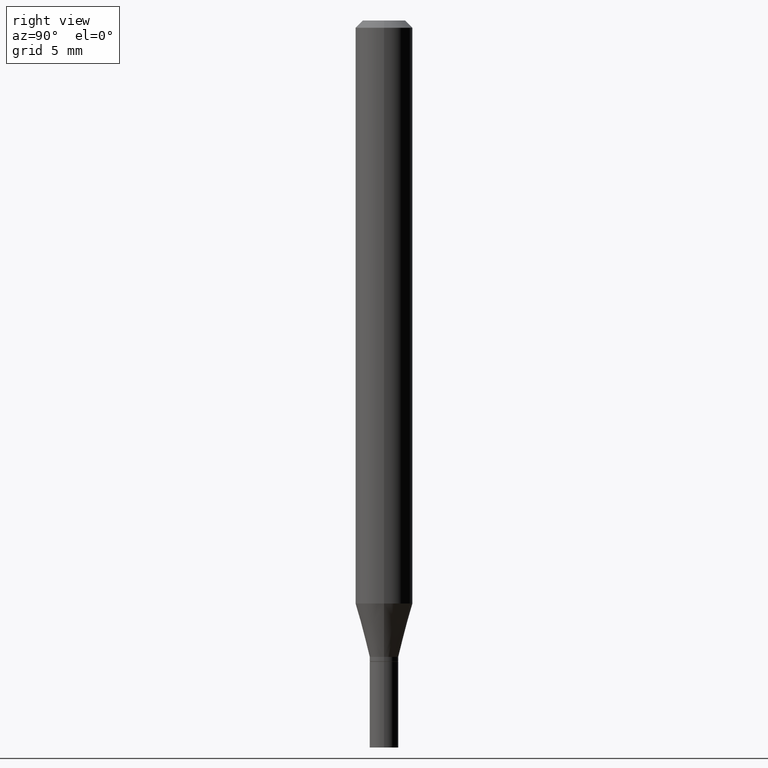
[diagram: clean part render]
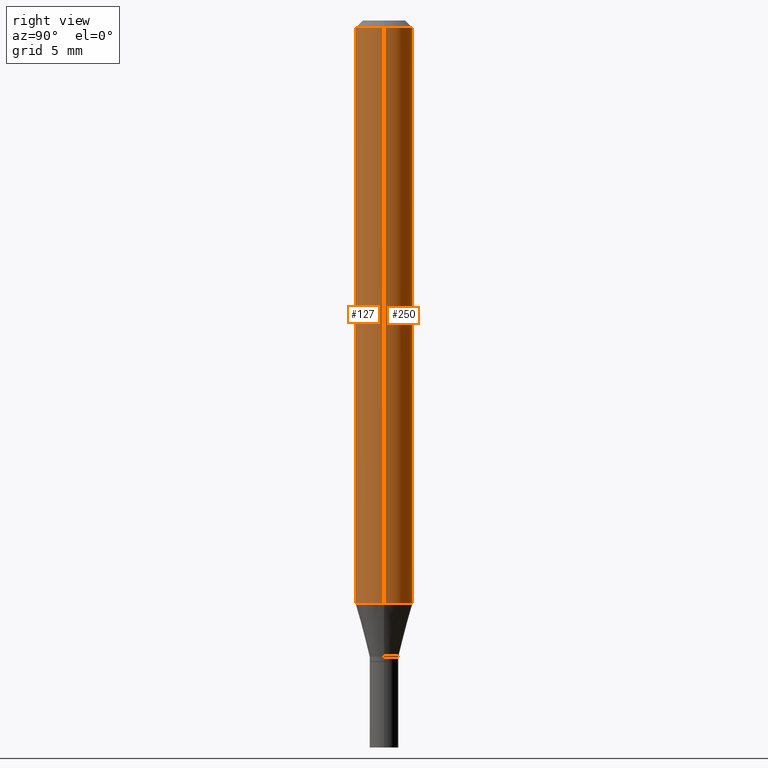
[diagram: same view with one multi-face feature highlighted, each face labeled with its STEP entity id]
A machine part, right view. The highlighted faces form ONE feature: a constant-radius fillet chain: 2 tangent blend faces with common blend radius 1.4999 mm. The faces share edges in the B-rep.
Their STEP definitions:
[1] entity #127 (Cylinder):
#2 = DIRECTION ( 'NONE',  ( -2.445468806185136877E-29, 3.491481338843145188E-15, 1.000000000000000000 ) ) ;
#7 = EDGE_CURVE ( 'NONE', #201, #387, #37, .T. ) ;
#17 = CARTESIAN_POINT ( 'NONE',  ( 3.668203209277705088E-31, -5.237222008264718399E-17, -0.01499999999999999944 ) ) ;
#22 = CARTESIAN_POINT ( 'NONE',  ( -0.05904999999999999832, -3.780343132802594460E-15, -1.202904501176718099 ) ) ;
#23 = DIRECTION ( 'NONE',  ( 1.000000000000000000, -6.982962677686273021E-15, 0.000000000000000000 ) ) ;
#29 = FACE_OUTER_BOUND ( 'NONE', #452, .T. ) ;
#37 = LINE ( 'NONE', #330, #188 ) ;
#39 = AXIS2_PLACEMENT_3D ( 'NONE', #17, #203, #308 ) ;
#82 = ORIENTED_EDGE ( 'NONE', *, *, #7, .T. ) ;
#96 = CARTESIAN_POINT ( 'NONE',  ( 0.05904999999999999832, -4.612262564386308085E-15, -1.202904501176718099 ) ) ;
#99 = CARTESIAN_POINT ( 'NONE',  ( 0.000000000000000000, 0.000000000000000000, 0.000000000000000000 ) ) ;
#114 = EDGE_CURVE ( 'NONE', #186, #201, #245, .T. ) ;
#126 = AXIS2_PLACEMENT_3D ( 'NONE', #239, #286, #23 ) ;
#127 = ADVANCED_FACE ( 'NONE', ( #29 ), #170, .T. ) ;
#131 = DIRECTION ( 'NONE',  ( -2.445468806185136877E-29, 3.491481338843145188E-15, 1.000000000000000000 ) ) ;
#149 = AXIS2_PLACEMENT_3D ( 'NONE', #99, #177, #249 ) ;
#158 = CIRCLE ( 'NONE', #39, 0.05905000000000001914 ) ;
#162 = CARTESIAN_POINT ( 'NONE',  ( -0.05905000000000002608, -1.706569933709451418E-15, -0.01499999999999999944 ) ) ;
#170 = CYLINDRICAL_SURFACE ( 'NONE', #149, 0.05905000000000000526 ) ;
#174 = EDGE_CURVE ( 'NONE', #186, #229, #455, .T. ) ;
#177 = DIRECTION ( 'NONE',  ( -2.445468806185136597E-29, 3.491481338843145583E-15, 1.000000000000000000 ) ) ;
#186 = VERTEX_POINT ( 'NONE', #22 ) ;
#188 = VECTOR ( 'NONE', #2, 39.37007874015748143 ) ;
#199 = ORIENTED_EDGE ( 'NONE', *, *, #226, .F. ) ;
#201 = VERTEX_POINT ( 'NONE', #96 ) ;
#203 = DIRECTION ( 'NONE',  ( -2.445468806185136597E-29, 3.491481338843145583E-15, 1.000000000000000000 ) ) ;
#226 = EDGE_CURVE ( 'NONE', #229, #387, #158, .T. ) ;
#229 = VERTEX_POINT ( 'NONE', #162 ) ;
#239 = CARTESIAN_POINT ( 'NONE',  ( 2.941665434447356051E-29, -4.199918618268933165E-15, -1.202904501176718099 ) ) ;
#245 = CIRCLE ( 'NONE', #126, 0.05904999999999999832 ) ;
#249 = DIRECTION ( 'NONE',  ( 1.000000000000000000, -6.982962677686267499E-15, 4.876176775795936353E-29 ) ) ;
#286 = DIRECTION ( 'NONE',  ( -2.445468806185136597E-29, 3.491481338843145583E-15, 1.000000000000000000 ) ) ;
#308 = DIRECTION ( 'NONE',  ( 1.000000000000000000, -6.982962677686266711E-15, 0.000000000000000000 ) ) ;
#321 = CARTESIAN_POINT ( 'NONE',  ( 0.05905000000000001914, -4.647161662000214077E-16, -0.01499999999999999944 ) ) ;
#330 = CARTESIAN_POINT ( 'NONE',  ( 0.05905000000000000526, -4.123439461173741313E-16, 2.879382386107500571E-30 ) ) ;
#336 = VECTOR ( 'NONE', #131, 39.37007874015748143 ) ;
#387 = VERTEX_POINT ( 'NONE', #321 ) ;
#396 = CARTESIAN_POINT ( 'NONE',  ( -0.05905000000000000526, 4.195754854663391971E-16, -2.904631170795522242E-30 ) ) ;
#410 = ORIENTED_EDGE ( 'NONE', *, *, #174, .F. ) ;
#448 = ORIENTED_EDGE ( 'NONE', *, *, #114, .T. ) ;
#452 = EDGE_LOOP ( 'NONE', ( #410, #448, #82, #199 ) ) ;
#455 = LINE ( 'NONE', #396, #336 ) ;
[2] entity #250 (Cylinder):
#2 = DIRECTION ( 'NONE',  ( -2.445468806185136877E-29, 3.491481338843145188E-15, 1.000000000000000000 ) ) ;
#7 = EDGE_CURVE ( 'NONE', #201, #387, #37, .T. ) ;
#14 = AXIS2_PLACEMENT_3D ( 'NONE', #233, #312, #123 ) ;
#22 = CARTESIAN_POINT ( 'NONE',  ( -0.05904999999999999832, -3.780343132802594460E-15, -1.202904501176718099 ) ) ;
#26 = CARTESIAN_POINT ( 'NONE',  ( 2.941665434447356051E-29, -4.199918618268933165E-15, -1.202904501176718099 ) ) ;
#37 = LINE ( 'NONE', #330, #188 ) ;
#67 = EDGE_CURVE ( 'NONE', #387, #229, #391, .T. ) ;
#69 = CIRCLE ( 'NONE', #296, 0.05904999999999999832 ) ;
#84 = FACE_OUTER_BOUND ( 'NONE', #385, .T. ) ;
#86 = DIRECTION ( 'NONE',  ( 1.000000000000000000, -6.982962677686273021E-15, 0.000000000000000000 ) ) ;
#94 = ORIENTED_EDGE ( 'NONE', *, *, #67, .F. ) ;
#96 = CARTESIAN_POINT ( 'NONE',  ( 0.05904999999999999832, -4.612262564386308085E-15, -1.202904501176718099 ) ) ;
#123 = DIRECTION ( 'NONE',  ( 1.000000000000000000, -6.982962677686267499E-15, 4.876176775795936353E-29 ) ) ;
#129 = ORIENTED_EDGE ( 'NONE', *, *, #174, .T. ) ;
#131 = DIRECTION ( 'NONE',  ( -2.445468806185136877E-29, 3.491481338843145188E-15, 1.000000000000000000 ) ) ;
#157 = DIRECTION ( 'NONE',  ( -2.445468806185136597E-29, 3.491481338843145583E-15, 1.000000000000000000 ) ) ;
#162 = CARTESIAN_POINT ( 'NONE',  ( -0.05905000000000002608, -1.706569933709451418E-15, -0.01499999999999999944 ) ) ;
#174 = EDGE_CURVE ( 'NONE', #186, #229, #455, .T. ) ;
#179 = AXIS2_PLACEMENT_3D ( 'NONE', #416, #302, #380 ) ;
#186 = VERTEX_POINT ( 'NONE', #22 ) ;
#188 = VECTOR ( 'NONE', #2, 39.37007874015748143 ) ;
#201 = VERTEX_POINT ( 'NONE', #96 ) ;
#229 = VERTEX_POINT ( 'NONE', #162 ) ;
#233 = CARTESIAN_POINT ( 'NONE',  ( 0.000000000000000000, 0.000000000000000000, 0.000000000000000000 ) ) ;
#250 = ADVANCED_FACE ( 'NONE', ( #84 ), #454, .T. ) ;
#296 = AXIS2_PLACEMENT_3D ( 'NONE', #26, #157, #86 ) ;
#302 = DIRECTION ( 'NONE',  ( -2.445468806185136597E-29, 3.491481338843145583E-15, 1.000000000000000000 ) ) ;
#312 = DIRECTION ( 'NONE',  ( -2.445468806185136597E-29, 3.491481338843145583E-15, 1.000000000000000000 ) ) ;
#321 = CARTESIAN_POINT ( 'NONE',  ( 0.05905000000000001914, -4.647161662000214077E-16, -0.01499999999999999944 ) ) ;
#330 = CARTESIAN_POINT ( 'NONE',  ( 0.05905000000000000526, -4.123439461173741313E-16, 2.879382386107500571E-30 ) ) ;
#336 = VECTOR ( 'NONE', #131, 39.37007874015748143 ) ;
#338 = EDGE_CURVE ( 'NONE', #201, #186, #69, .T. ) ;
#349 = ORIENTED_EDGE ( 'NONE', *, *, #338, .T. ) ;
#380 = DIRECTION ( 'NONE',  ( 1.000000000000000000, -6.982962677686266711E-15, 0.000000000000000000 ) ) ;
#385 = EDGE_LOOP ( 'NONE', ( #349, #129, #94, #414 ) ) ;
#387 = VERTEX_POINT ( 'NONE', #321 ) ;
#391 = CIRCLE ( 'NONE', #179, 0.05905000000000001914 ) ;
#396 = CARTESIAN_POINT ( 'NONE',  ( -0.05905000000000000526, 4.195754854663391971E-16, -2.904631170795522242E-30 ) ) ;
#414 = ORIENTED_EDGE ( 'NONE', *, *, #7, .F. ) ;
#416 = CARTESIAN_POINT ( 'NONE',  ( 3.668203209277705088E-31, -5.237222008264718399E-17, -0.01499999999999999944 ) ) ;
#454 = CYLINDRICAL_SURFACE ( 'NONE', #14, 0.05905000000000000526 ) ;
#455 = LINE ( 'NONE', #396, #336 ) ;